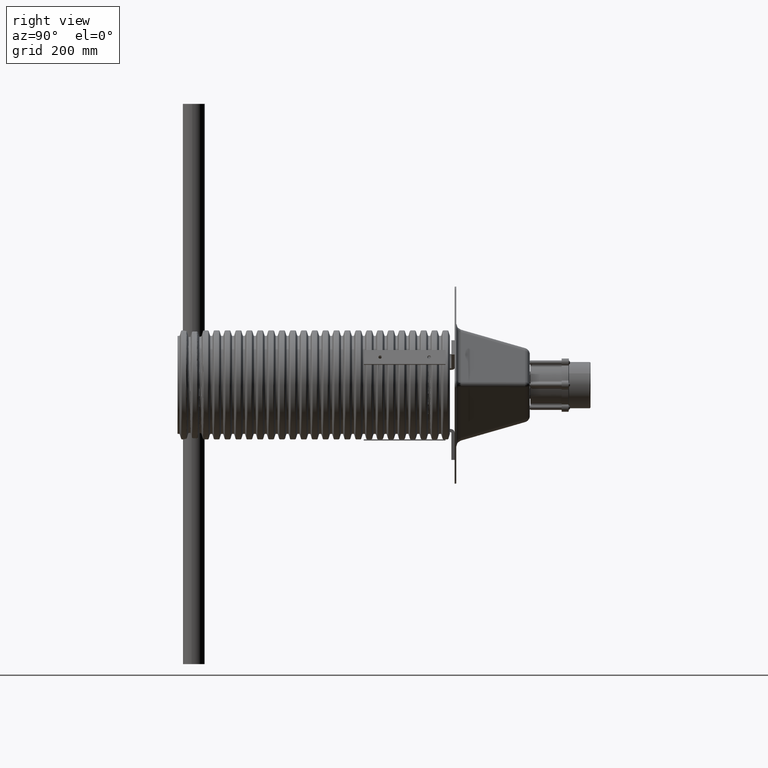
[diagram: clean part render]
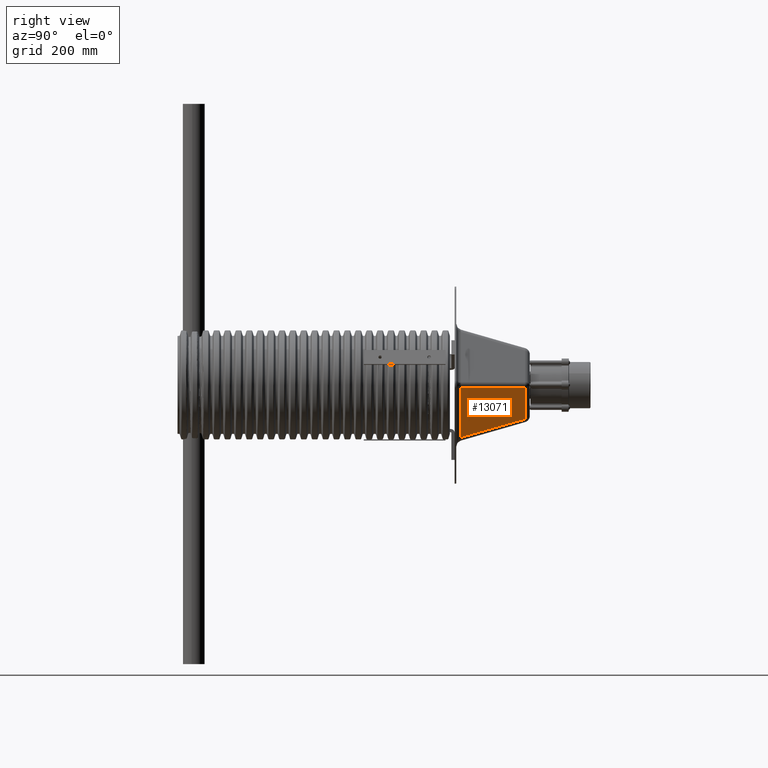
[diagram: same view with one face highlighted and labeled with its STEP entity id]
A machine part, right view. The second image highlights one B-rep face of the part: STEP entity #13071.
In plain terms, the highlighted planar face has unit normal (0.8369, 0.2752, -0.4731).
Its self-contained STEP definition (entity closure, byte-faithful):
#364 = CARTESIAN_POINT ( 'NONE',  ( 67.61006919904156121, -1.110223024625156540E-13, 129.3021738684424520 ) ) ;
#2756 = ORIENTED_EDGE ( 'NONE', *, *, #19390, .T. ) ;
#3328 = DIRECTION ( 'NONE',  ( 0.9613923920781132226, 9.436895709313832566E-16, 0.2751811557035175326 ) ) ;
#3362 = CARTESIAN_POINT ( 'NONE',  ( 94.55410107692021882, 49.04023414611158671, 35.16859414319484500 ) ) ;
#6341 = LINE ( 'NONE', #43402, #44435 ) ;
#6959 = DIRECTION ( 'NONE',  ( -0.2717725502388407266, -0.1569079550387466049, 0.9494838464040531445 ) ) ;
#7813 = CARTESIAN_POINT ( 'NONE',  ( 94.55410107692038935, -49.04023414611158671, 35.16859414319461763 ) ) ;
#9526 = VECTOR ( 'NONE', #11397, 1000.000000000000000 ) ;
#9817 = CARTESIAN_POINT ( 'NONE',  ( 101.2721832251787504, -52.91892068284654016, 11.69782613155778606 ) ) ;
#11397 = DIRECTION ( 'NONE',  ( 0.2717725502388410042, -0.1569079550387466049, -0.9494838464040530335 ) ) ;
#13071 = ADVANCED_FACE ( 'NONE', ( #44014 ), #38841, .T. ) ;
#15336 = EDGE_CURVE ( 'NONE', #31092, #27721, #44726, .T. ) ;
#16436 = ORIENTED_EDGE ( 'NONE', *, *, #23749, .T. ) ;
#17053 = LINE ( 'NONE', #3362, #26541 ) ;
#18628 = VERTEX_POINT ( 'NONE', #9817 ) ;
#18849 = CARTESIAN_POINT ( 'NONE',  ( 101.2721832251786935, 52.91892068284654016, 11.69782613155800988 ) ) ;
#19390 = EDGE_CURVE ( 'NONE', #18628, #43228, #6341, .T. ) ;
#20943 = EDGE_CURVE ( 'NONE', #43228, #31092, #17053, .T. ) ;
#21001 = ORIENTED_EDGE ( 'NONE', *, *, #15336, .T. ) ;
#23749 = EDGE_CURVE ( 'NONE', #27721, #18628, #28513, .T. ) ;
#24774 = CARTESIAN_POINT ( 'NONE',  ( 96.69812332812044531, 1.110223024625156540E-13, 27.67808602507815152 ) ) ;
#25367 = DIRECTION ( 'NONE',  ( 9.436895709313830594E-16, -1.000000000000000000, 3.944304526105059027E-31 ) ) ;
#26541 = VECTOR ( 'NONE', #6959, 1000.000000000000000 ) ;
#27004 = CARTESIAN_POINT ( 'NONE',  ( 67.61006919904147594, 33.48409008836439682, 129.3021738684422246 ) ) ;
#27721 = VERTEX_POINT ( 'NONE', #42758 ) ;
#28317 = DIRECTION ( 'NONE',  ( 0.2751811557035175326, 0.0000000000000000000, -0.9613923920781132226 ) ) ;
#28513 = LINE ( 'NONE', #7813, #9526 ) ;
#31092 = VERTEX_POINT ( 'NONE', #27004 ) ;
#36107 = EDGE_LOOP ( 'NONE', ( #16436, #2756, #38243, #21001 ) ) ;
#36312 = VECTOR ( 'NONE', #25367, 1000.000000000000000 ) ;
#37824 = AXIS2_PLACEMENT_3D ( 'NONE', #24774, #3328, #28317 ) ;
#38243 = ORIENTED_EDGE ( 'NONE', *, *, #20943, .T. ) ;
#38841 = PLANE ( 'NONE',  #37824 ) ;
#39797 = DIRECTION ( 'NONE',  ( -9.436895709313830594E-16, 1.000000000000000000, -3.944304526105059027E-31 ) ) ;
#42758 = CARTESIAN_POINT ( 'NONE',  ( 67.61006919904153278, -33.48409008836450340, 129.3021738684422246 ) ) ;
#43228 = VERTEX_POINT ( 'NONE', #18849 ) ;
#43402 = CARTESIAN_POINT ( 'NONE',  ( 101.2721832251786935, 54.35628911913337191, 11.69782613155800988 ) ) ;
#44014 = FACE_OUTER_BOUND ( 'NONE', #36107, .T. ) ;
#44435 = VECTOR ( 'NONE', #39797, 1000.000000000000000 ) ;
#44726 = LINE ( 'NONE', #364, #36312 ) ;